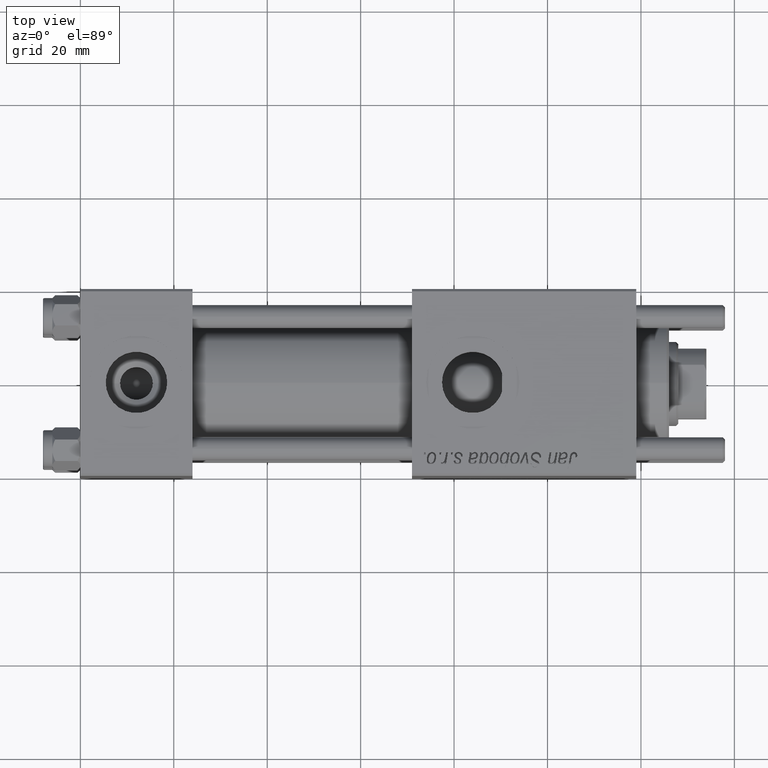
[diagram: clean part render]
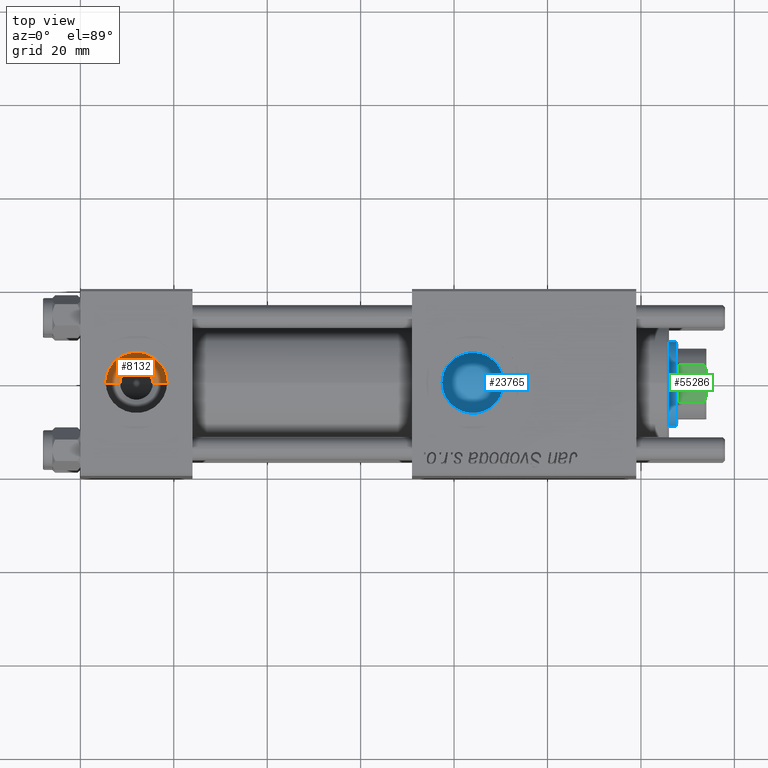
[diagram: same view with three faces highlighted in distinct colors, each labeled with its STEP entity id]
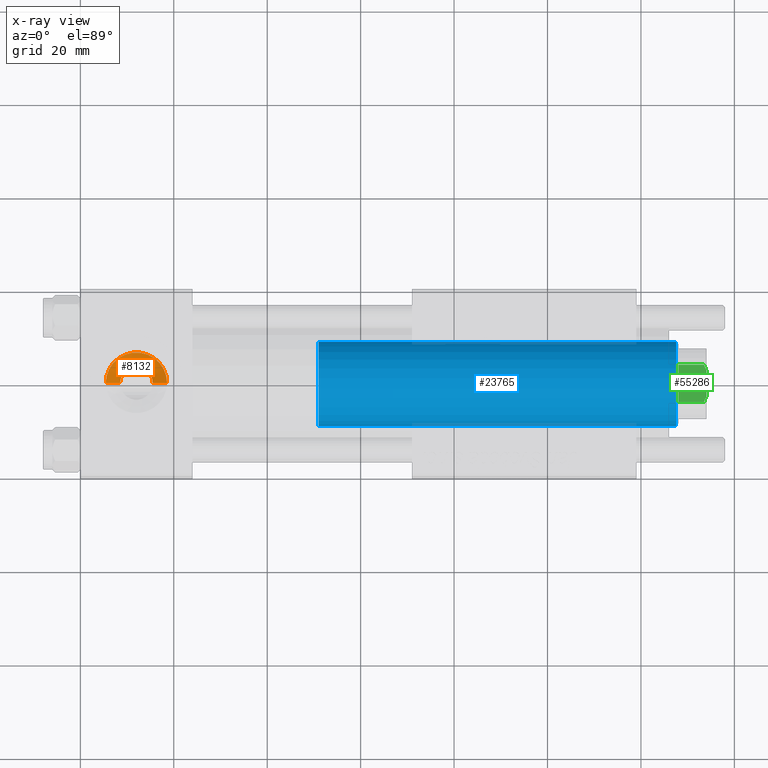
[diagram: x-ray of the same camera — body ghosted, the three highlighted faces saturated]
A machine part, top view with three faces highlighted in distinct colors.
The next image is the same camera in x-ray (body ghosted, the three faces saturated) — at least one of them is partly hidden behind the body in this view.
Their STEP definitions:

[orange] entity #8132 — the highlighted conical surface has half-angle 60.452 deg.
#292 = VECTOR ( 'NONE', #47207, 1000.000000000000000 ) ;
#1164 = CARTESIAN_POINT ( 'NONE',  ( 5.420000000000000817, 8.058175938389596335E-16, 9.165987261146492315 ) ) ;
#1623 = VERTEX_POINT ( 'NONE', #1164 ) ;
#3590 = CIRCLE ( 'NONE', #7262, 3.499999999999999556 ) ;
#6017 = AXIS2_PLACEMENT_3D ( 'NONE', #24254, #36850, #15923 ) ;
#6442 = LINE ( 'NONE', #11039, #38575 ) ;
#7262 = AXIS2_PLACEMENT_3D ( 'NONE', #14407, #27871, #53946 ) ;
#8132 = ADVANCED_FACE ( 'NONE', ( #46593 ), #30735, .F. ) ;
#8774 = CARTESIAN_POINT ( 'NONE',  ( 15.50000000000000000, 1.540743955509788682E-30, 7.419999999999996376 ) ) ;
#11039 = CARTESIAN_POINT ( 'NONE',  ( 15.50000000000000000, 1.540743955509788682E-30, 7.419999999999996376 ) ) ;
#11857 = VERTEX_POINT ( 'NONE', #20759 ) ;
#12603 = CARTESIAN_POINT ( 'NONE',  ( 12.00000000000000000, 1.540743955509788682E-30, 9.165987261146492315 ) ) ;
#14407 = CARTESIAN_POINT ( 'NONE',  ( 12.00000000000000000, 1.540743955509788682E-30, 7.419999999999996376 ) ) ;
#15805 = CIRCLE ( 'NONE', #41416, 6.579999999999999183 ) ;
#15923 = DIRECTION ( 'NONE',  ( 1.000000000000000000, 0.000000000000000000, 0.000000000000000000 ) ) ;
#16336 = DIRECTION ( 'NONE',  ( 1.000000000000000000, 0.000000000000000000, 0.000000000000000000 ) ) ;
#17379 = EDGE_CURVE ( 'NONE', #50835, #11857, #3590, .T. ) ;
#19330 = ORIENTED_EDGE ( 'NONE', *, *, #24691, .T. ) ;
#20759 = CARTESIAN_POINT ( 'NONE',  ( 8.500000000000000000, 4.286263797015752865E-16, 7.419999999999996376 ) ) ;
#24254 = CARTESIAN_POINT ( 'NONE',  ( 12.00000000000000000, 1.540743955509788682E-30, 7.419999999999996376 ) ) ;
#24691 = EDGE_CURVE ( 'NONE', #50835, #28076, #6442, .T. ) ;
#27871 = DIRECTION ( 'NONE',  ( 0.000000000000000000, 0.000000000000000000, 1.000000000000000000 ) ) ;
#28076 = VERTEX_POINT ( 'NONE', #54955 ) ;
#30735 = CONICAL_SURFACE ( 'NONE', #6017, 3.499999999999999556, 1.055086625138361267 ) ;
#30845 = CARTESIAN_POINT ( 'NONE',  ( 8.500000000000000000, 4.286263797015751879E-16, 7.419999999999996376 ) ) ;
#32901 = EDGE_CURVE ( 'NONE', #1623, #28076, #15805, .T. ) ;
#35770 = EDGE_LOOP ( 'NONE', ( #55781, #39688, #19330, #46094 ) ) ;
#36850 = DIRECTION ( 'NONE',  ( 0.000000000000000000, 0.000000000000000000, 1.000000000000000000 ) ) ;
#38575 = VECTOR ( 'NONE', #41701, 1000.000000000000000 ) ;
#39688 = ORIENTED_EDGE ( 'NONE', *, *, #17379, .F. ) ;
#41416 = AXIS2_PLACEMENT_3D ( 'NONE', #12603, #55604, #16336 ) ;
#41701 = DIRECTION ( 'NONE',  ( 0.8699429503561852961, 0.000000000000000000, 0.4931523731318503412 ) ) ;
#46094 = ORIENTED_EDGE ( 'NONE', *, *, #32901, .F. ) ;
#46593 = FACE_OUTER_BOUND ( 'NONE', #35770, .T. ) ;
#47207 = DIRECTION ( 'NONE',  ( -0.8699429503561852961, 1.065372849594507103E-16, 0.4931523731318503412 ) ) ;
#47758 = LINE ( 'NONE', #30845, #292 ) ;
#50835 = VERTEX_POINT ( 'NONE', #8774 ) ;
#50890 = EDGE_CURVE ( 'NONE', #11857, #1623, #47758, .T. ) ;
#53946 = DIRECTION ( 'NONE',  ( 1.000000000000000000, 0.000000000000000000, 0.000000000000000000 ) ) ;
#54955 = CARTESIAN_POINT ( 'NONE',  ( 18.57999999999999829, 1.540743955509788682E-30, 9.165987261146492315 ) ) ;
#55604 = DIRECTION ( 'NONE',  ( -0.000000000000000000, -0.000000000000000000, -1.000000000000000000 ) ) ;
#55781 = ORIENTED_EDGE ( 'NONE', *, *, #50890, .F. ) ;

[blue] entity #23765 — the highlighted cylindrical surface (partial cylindrical patch) has radius 9 mm, axis along (-1, 0, 0).
#760 = ORIENTED_EDGE ( 'NONE', *, *, #11221, .T. ) ;
#1552 = AXIS2_PLACEMENT_3D ( 'NONE', #25558, #51328, #51610 ) ;
#10453 = DIRECTION ( 'NONE',  ( -0.000000000000000000, -0.000000000000000000, -1.000000000000000000 ) ) ;
#11114 = CARTESIAN_POINT ( 'NONE',  ( 9.000000000000000000, 1.102182119232617714E-15, 103.5000000000000000 ) ) ;
#11221 = EDGE_CURVE ( 'NONE', #21929, #28497, #20827, .T. ) ;
#11815 = CARTESIAN_POINT ( 'NONE',  ( -9.000000000000000000, 0.000000000000000000, 104.0000000000000000 ) ) ;
#13208 = CARTESIAN_POINT ( 'NONE',  ( 9.000000000000000000, 1.102182119232617714E-15, 27.00000000000000000 ) ) ;
#14327 = VERTEX_POINT ( 'NONE', #13208 ) ;
#14794 = VECTOR ( 'NONE', #33599, 1000.000000000000000 ) ;
#15900 = CARTESIAN_POINT ( 'NONE',  ( -9.000000000000000000, 0.000000000000000000, 103.5000000000000000 ) ) ;
#16397 = CARTESIAN_POINT ( 'NONE',  ( -9.000000000000000000, 0.000000000000000000, 27.00000000000000000 ) ) ;
#19108 = CARTESIAN_POINT ( 'NONE',  ( 9.000000000000000000, 1.102182119232617714E-15, 104.0000000000000000 ) ) ;
#20478 = CIRCLE ( 'NONE', #56163, 9.000000000000000000 ) ;
#20575 = CARTESIAN_POINT ( 'NONE',  ( 0.000000000000000000, 0.000000000000000000, 27.00000000000000000 ) ) ;
#20827 = CIRCLE ( 'NONE', #1552, 9.000000000000000000 ) ;
#21929 = VERTEX_POINT ( 'NONE', #11114 ) ;
#23765 = ADVANCED_FACE ( 'NONE', ( #24215 ), #49998, .T. ) ;
#24215 = FACE_OUTER_BOUND ( 'NONE', #36655, .T. ) ;
#24265 = EDGE_CURVE ( 'NONE', #28497, #31810, #56219, .T. ) ;
#25558 = CARTESIAN_POINT ( 'NONE',  ( 0.000000000000000000, 0.000000000000000000, 103.5000000000000000 ) ) ;
#27954 = DIRECTION ( 'NONE',  ( -1.000000000000000000, 0.000000000000000000, 0.000000000000000000 ) ) ;
#28497 = VERTEX_POINT ( 'NONE', #15900 ) ;
#31197 = AXIS2_PLACEMENT_3D ( 'NONE', #50555, #10453, #27954 ) ;
#31810 = VERTEX_POINT ( 'NONE', #16397 ) ;
#33599 = DIRECTION ( 'NONE',  ( -0.000000000000000000, -0.000000000000000000, -1.000000000000000000 ) ) ;
#34827 = ORIENTED_EDGE ( 'NONE', *, *, #24265, .T. ) ;
#36151 = VECTOR ( 'NONE', #54055, 1000.000000000000000 ) ;
#36362 = EDGE_CURVE ( 'NONE', #31810, #14327, #20478, .T. ) ;
#36655 = EDGE_LOOP ( 'NONE', ( #36732, #760, #34827, #46951 ) ) ;
#36732 = ORIENTED_EDGE ( 'NONE', *, *, #54644, .F. ) ;
#38339 = DIRECTION ( 'NONE',  ( 1.000000000000000000, 0.000000000000000000, 0.000000000000000000 ) ) ;
#40589 = LINE ( 'NONE', #19108, #36151 ) ;
#46951 = ORIENTED_EDGE ( 'NONE', *, *, #36362, .T. ) ;
#47211 = DIRECTION ( 'NONE',  ( 0.000000000000000000, 0.000000000000000000, 1.000000000000000000 ) ) ;
#49998 = CYLINDRICAL_SURFACE ( 'NONE', #31197, 9.000000000000000000 ) ;
#50555 = CARTESIAN_POINT ( 'NONE',  ( 0.000000000000000000, 0.000000000000000000, 104.0000000000000000 ) ) ;
#51328 = DIRECTION ( 'NONE',  ( 0.000000000000000000, 0.000000000000000000, -1.000000000000000000 ) ) ;
#51610 = DIRECTION ( 'NONE',  ( 1.000000000000000000, 0.000000000000000000, 0.000000000000000000 ) ) ;
#54055 = DIRECTION ( 'NONE',  ( -0.000000000000000000, -0.000000000000000000, -1.000000000000000000 ) ) ;
#54644 = EDGE_CURVE ( 'NONE', #21929, #14327, #40589, .T. ) ;
#56163 = AXIS2_PLACEMENT_3D ( 'NONE', #20575, #47211, #38339 ) ;
#56219 = LINE ( 'NONE', #11815, #14794 ) ;

[green] entity #55286 — the highlighted planar face has unit normal (0, 0, -1).
#1389 = FACE_OUTER_BOUND ( 'NONE', #33423, .T. ) ;
#1678 = CARTESIAN_POINT ( 'NONE',  ( -7.499999999999998224, -7.500000000000000000, 110.0000000000000000 ) ) ;
#1844 = LINE ( 'NONE', #23939, #38850 ) ;
#2023 = VERTEX_POINT ( 'NONE', #49098 ) ;
#2161 = ORIENTED_EDGE ( 'NONE', *, *, #10785, .T. ) ;
#2485 = EDGE_CURVE ( 'NONE', #44045, #28935, #22059, .T. ) ;
#3907 = CARTESIAN_POINT ( 'NONE',  ( 2.783882181414686574, -7.500000000000000000, 110.0000000000000000 ) ) ;
#8814 = VECTOR ( 'NONE', #18040, 1000.000000000000000 ) ;
#9276 = CARTESIAN_POINT ( 'NONE',  ( 2.783882181414686574, -7.500000000000000000, 110.0000000000000000 ) ) ;
#10785 = EDGE_CURVE ( 'NONE', #19635, #44045, #33997, .T. ) ;
#12086 = B_SPLINE_CURVE_WITH_KNOTS ( 'NONE', 3,
 ( #33385, #21071, #51161, #25092 ),
 .UNSPECIFIED., .F., .F.,
 ( 4, 4 ),
 ( 0.000000000000000000, 0.001314892599675087379 ),
 .UNSPECIFIED. ) ;
#13550 = EDGE_CURVE ( 'NONE', #28935, #48835, #51270, .T. ) ;
#18040 = DIRECTION ( 'NONE',  ( -0.000000000000000000, -0.000000000000000000, 1.000000000000000000 ) ) ;
#19576 = CARTESIAN_POINT ( 'NONE',  ( -4.000000000000001776, -7.500000000000000000, -0.001000000000001000089 ) ) ;
#19635 = VERTEX_POINT ( 'NONE', #29913 ) ;
#20027 = DIRECTION ( 'NONE',  ( 0.000000000000000000, 1.000000000000000000, 0.000000000000000000 ) ) ;
#21071 = CARTESIAN_POINT ( 'NONE',  ( -3.198463757182627099, -7.500000000000000000, 109.8557317173096521 ) ) ;
#21238 = VECTOR ( 'NONE', #49944, 1000.000000000000000 ) ;
#22059 = LINE ( 'NONE', #39251, #8814 ) ;
#23203 = PLANE ( 'NONE',  #45274 ) ;
#23939 = CARTESIAN_POINT ( 'NONE',  ( -7.499999999999998224, -7.500000000000000000, 110.0000000000000000 ) ) ;
#25092 = CARTESIAN_POINT ( 'NONE',  ( -4.000000000000001776, -7.500000000000000000, 109.4999999999999147 ) ) ;
#25223 = ORIENTED_EDGE ( 'NONE', *, *, #13550, .T. ) ;
#25715 = CARTESIAN_POINT ( 'NONE',  ( 3.198463757182489431, -7.500000000000000000, 109.8557317173096379 ) ) ;
#25889 = EDGE_CURVE ( 'NONE', #19635, #2023, #41355, .T. ) ;
#26320 = CARTESIAN_POINT ( 'NONE',  ( -2.783882181414881973, -7.500000000000000000, 110.0000000000000000 ) ) ;
#28467 = EDGE_CURVE ( 'NONE', #53062, #2023, #12086, .T. ) ;
#28935 = VERTEX_POINT ( 'NONE', #53331 ) ;
#29913 = CARTESIAN_POINT ( 'NONE',  ( -4.000000000000001776, -7.500000000000000000, 103.9999999999999858 ) ) ;
#30091 = CARTESIAN_POINT ( 'NONE',  ( 4.000000000000001776, -7.500000000000000000, 103.9999999999999716 ) ) ;
#30819 = VECTOR ( 'NONE', #43418, 1000.000000000000000 ) ;
#33385 = CARTESIAN_POINT ( 'NONE',  ( -2.783882181414881973, -7.500000000000000000, 110.0000000000000000 ) ) ;
#33423 = EDGE_LOOP ( 'NONE', ( #47526, #25223, #36553, #37915, #52488, #2161 ) ) ;
#33997 = LINE ( 'NONE', #34554, #30819 ) ;
#34554 = CARTESIAN_POINT ( 'NONE',  ( -7.499999999999998224, -7.500000000000000000, 104.0000000000000000 ) ) ;
#36553 = ORIENTED_EDGE ( 'NONE', *, *, #38713, .F. ) ;
#36644 = DIRECTION ( 'NONE',  ( 0.000000000000000000, -0.000000000000000000, 1.000000000000000000 ) ) ;
#37915 = ORIENTED_EDGE ( 'NONE', *, *, #28467, .T. ) ;
#38713 = EDGE_CURVE ( 'NONE', #53062, #48835, #1844, .T. ) ;
#38850 = VECTOR ( 'NONE', #41405, 1000.000000000000000 ) ;
#39251 = CARTESIAN_POINT ( 'NONE',  ( 4.000000000000001776, -7.500000000000000000, -0.001000000000001000089 ) ) ;
#41355 = LINE ( 'NONE', #19576, #21238 ) ;
#41405 = DIRECTION ( 'NONE',  ( 1.000000000000000000, 0.000000000000000000, 0.000000000000000000 ) ) ;
#43179 = CARTESIAN_POINT ( 'NONE',  ( 4.000000000000001776, -7.500000000000000000, 109.4999999999998579 ) ) ;
#43418 = DIRECTION ( 'NONE',  ( 1.000000000000000000, 0.000000000000000000, 0.000000000000000000 ) ) ;
#44045 = VERTEX_POINT ( 'NONE', #30091 ) ;
#45274 = AXIS2_PLACEMENT_3D ( 'NONE', #1678, #20027, #36644 ) ;
#47526 = ORIENTED_EDGE ( 'NONE', *, *, #2485, .T. ) ;
#48835 = VERTEX_POINT ( 'NONE', #9276 ) ;
#49098 = CARTESIAN_POINT ( 'NONE',  ( -4.000000000000001776, -7.500000000000000000, 109.4999999999999147 ) ) ;
#49944 = DIRECTION ( 'NONE',  ( -0.000000000000000000, -0.000000000000000000, 1.000000000000000000 ) ) ;
#51161 = CARTESIAN_POINT ( 'NONE',  ( -3.602928590769680639, -7.500000000000000000, 109.6868571337553959 ) ) ;
#51270 = B_SPLINE_CURVE_WITH_KNOTS ( 'NONE', 3,
 ( #43179, #56091, #25715, #3907 ),
 .UNSPECIFIED., .F., .F.,
 ( 4, 4 ),
 ( 9.540979117872439019E-18, 0.001314892599675281017 ),
 .UNSPECIFIED. ) ;
#52488 = ORIENTED_EDGE ( 'NONE', *, *, #25889, .F. ) ;
#53062 = VERTEX_POINT ( 'NONE', #26320 ) ;
#53331 = CARTESIAN_POINT ( 'NONE',  ( 4.000000000000001776, -7.500000000000000000, 109.4999999999998579 ) ) ;
#55286 = ADVANCED_FACE ( 'NONE', ( #1389 ), #23203, .F. ) ;
#56091 = CARTESIAN_POINT ( 'NONE',  ( 3.602928590769623352, -7.500000000000000000, 109.6868571337553675 ) ) ;